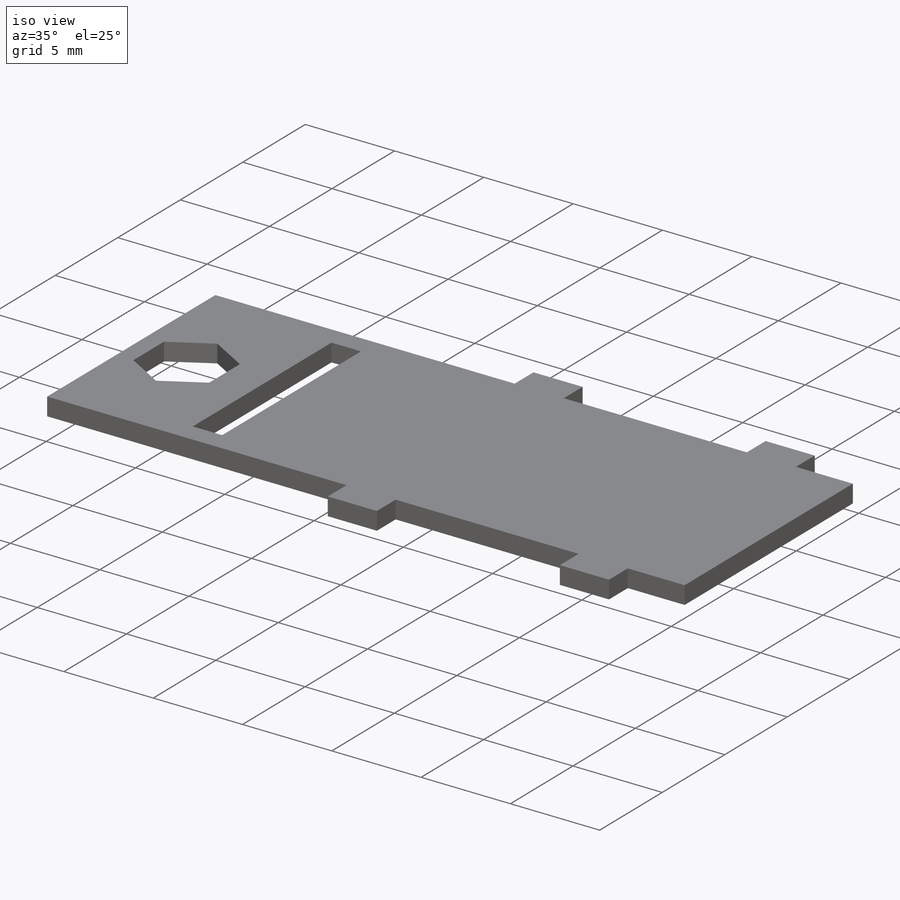
[diagram: iso view]
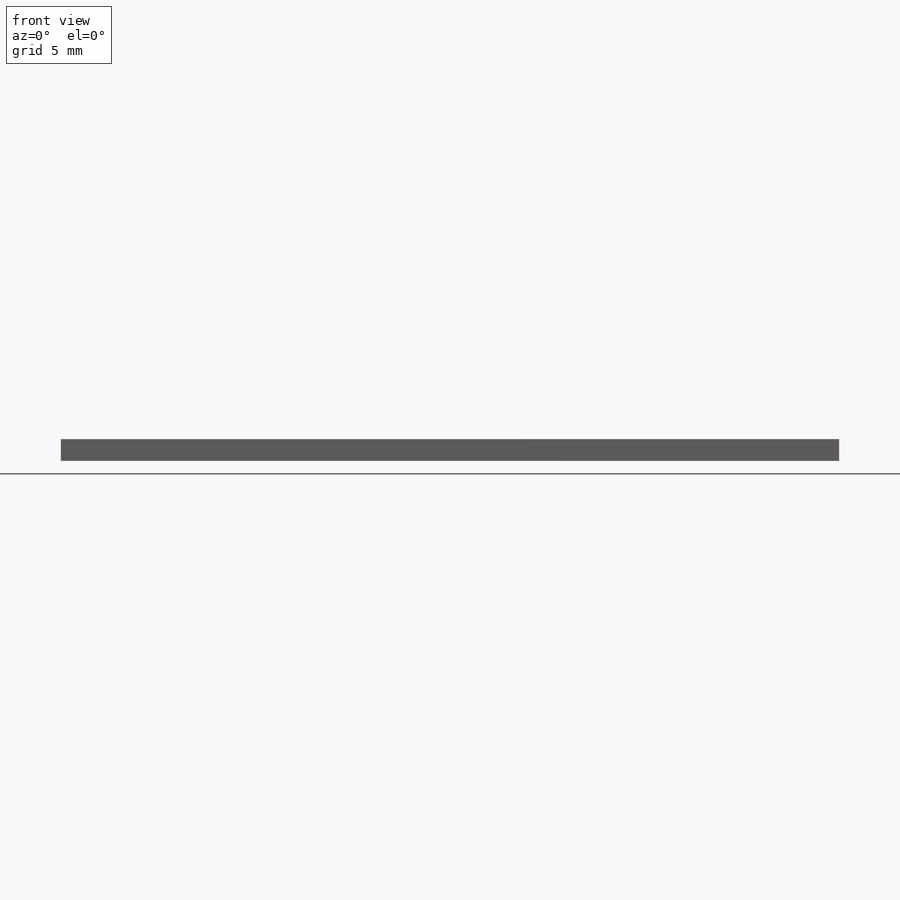
[diagram: front view]
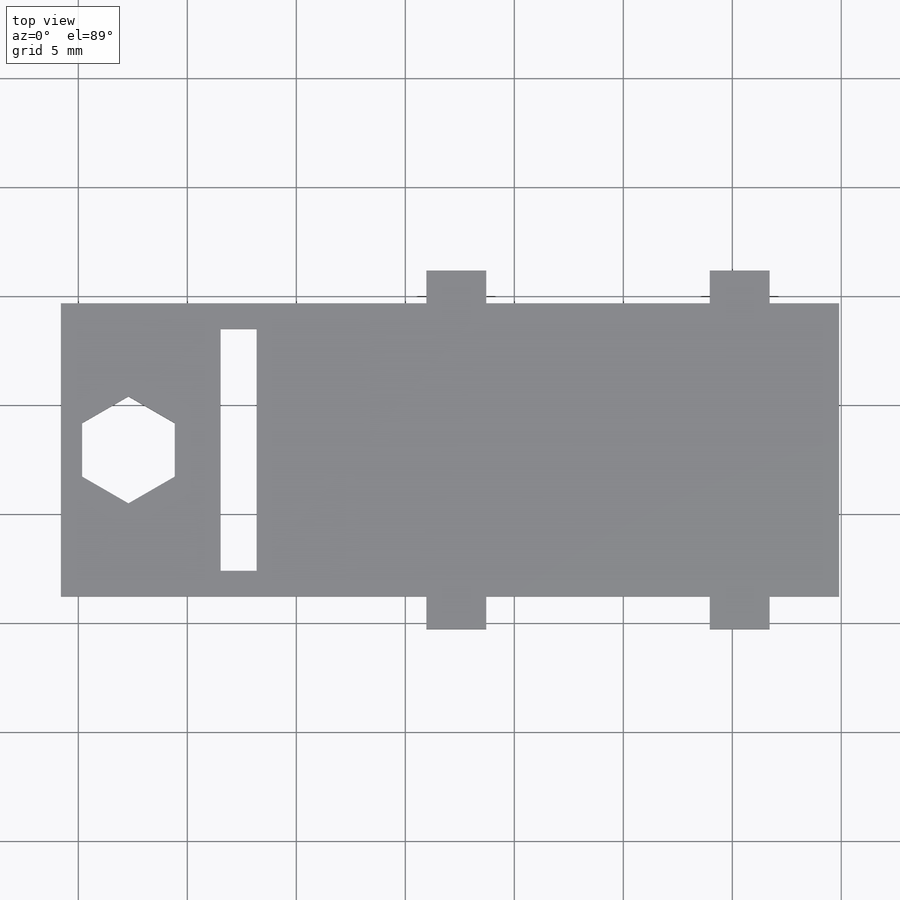
[diagram: top view]
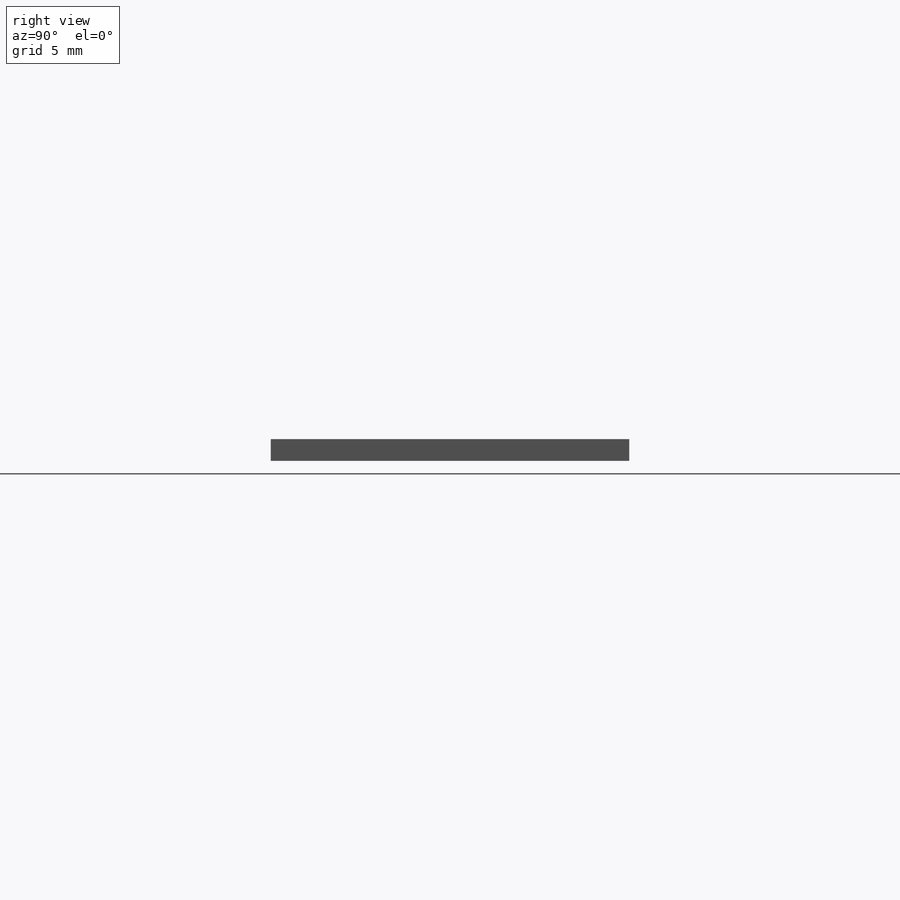
[diagram: right view]
SOLIDWORKS PART (.sldprt)
format: sldprt  version: not decoded by parser v0  size: 232,960 bytes
history: native  units: mm
features: sketch x4, extrude x2, cut_extrude x2, material x1 (+12 scaffold rows collapsed)
feature tree (21):
  scaffold x12  (default folders/planes/origin — collapsed)
  material  "Material <not specified>"
  sketch  "Sketch1"  dims[D1=13.45mm D2=35.7mm]
  sketch  "Sketch2"  dims[c1.D1=2.75mm c1.D2=16.765mm c1.D3=16.185mm c1.D4=1.5mm c1.D5=1.5mm c1.D6=2.75mm c1.D7=16.765mm c1.D8=6.0mm c1.D9=1.5mm c2.D8=2.0]
  extrude  "Boss-Extrude1"  Depth=1mm
  extrude  "Boss-Extrude2"  Depth=1mm
  sketch  "Sketch3"  dims[D1=1.65mm D2=11.1mm D3=1.175mm D4=1.175mm D5=7.33mm]
  cut_extrude  "adapter_PCB_hole"  Depth=1mm
  sketch  "Sketch4"  dims[c1.D1=6.725mm c1.D2=6.725mm c1.D3=3.1mm c2.D1=~29.898902deg]
  cut_extrude  "Cut-Extrude2"  Depth=1mm
decode coverage: 8 of 8 modeling features carry decoded parameters
note: ~ marks probable driven/reference dimensions
note: suppression state not decoded; provenance and decode notes live in map.json
